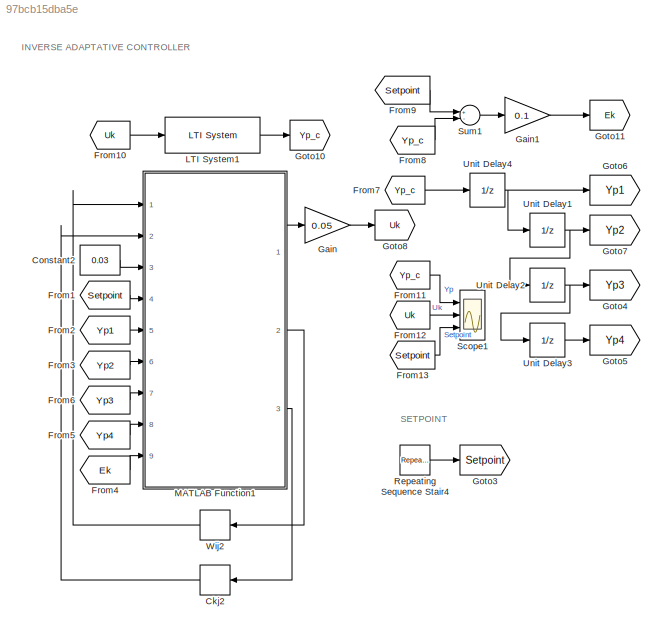
MODEL slx_97bcb15dba5e
KIND model
CONFIG AbsTol = auto
CONFIG EnableMultiTasking = off
CONFIG FixedStep = 0.01
CONFIG MaxStep = auto
CONFIG MinStep = auto
CONFIG RelTol = 1e-3
CONFIG SampleTimeConstraint = Unconstrained
CONFIG Solver = FixedStepAuto
CONFIG SolverName = FixedStepAuto
CONFIG StartTime = 0.0
CONFIG StopTime = 700
BLOCK [Memory] Ckj2
  InitialCondition = C
  NameLocation = top
BLOCK [Constant] Constant2
  Value = 0.03
BLOCK [From] From1
  GotoTag = Setpoint
BLOCK [From] From10
  GotoTag = Uk
BLOCK [From] From11
  GotoTag = Yp_c
BLOCK [From] From12
  GotoTag = Uk
BLOCK [From] From13
  GotoTag = Setpoint
BLOCK [From] From2
  GotoTag = Yp1
BLOCK [From] From3
  GotoTag = Yp2
BLOCK [From] From4
  GotoTag = Ek
BLOCK [From] From5
  GotoTag = Yp4
BLOCK [From] From6
  GotoTag = Yp3
BLOCK [From] From7
  GotoTag = Yp_c
BLOCK [From] From8
  GotoTag = Yp_c
BLOCK [From] From9
  GotoTag = Setpoint
BLOCK [Gain] Gain
  Gain = 0.05
BLOCK [Gain] Gain1
  Gain = 0.1
BLOCK [Goto] Goto10
  GotoTag = Yp_c
BLOCK [Goto] Goto11
  GotoTag = Ek
BLOCK [Goto] Goto3
  GotoTag = Setpoint
BLOCK [Goto] Goto4
  GotoTag = Yp3
BLOCK [Goto] Goto5
  GotoTag = Yp4
BLOCK [Goto] Goto6
  GotoTag = Yp1
BLOCK [Goto] Goto7
  GotoTag = Yp2
BLOCK [Goto] Goto8
  GotoTag = Uk
BLOCK [Reference] LTI System1  REF=cstblocks/LTI System
  Ports = [1, 1]
  SourceBlock = cstblocks/LTI System
  SourceProductBaseCode = CT
  SourceType = LTI Block
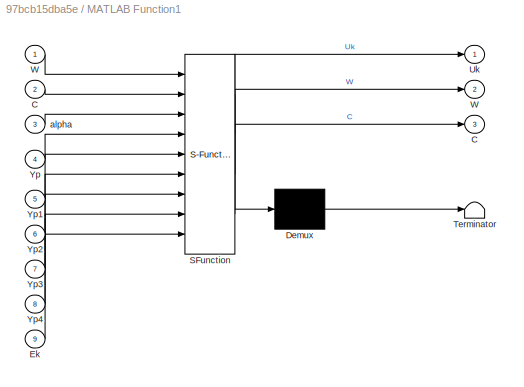
BLOCK [SubSystem] MATLAB Function1
  ErrorFcn = Stateflow.Translate.translate
  PermitHierarchicalResolution = ExplicitOnly
  Ports = [9, 3]
  RequestExecContextInheritance = off
  SFBlockType = MATLAB Function
  TreatAsAtomicUnit = on
BLOCK [Demux] MATLAB Function1/ Demux 
  Outputs = 1
  Ports = [1, 1]
BLOCK [S-Function] MATLAB Function1/ SFunction 
  EnableBusSupport = on
  FunctionName = sf_sfun
  PortCounts = [9 4]
  Ports = [9, 4]
  SFcnIsStateOwnerBlock = off
  SFunctionDeploymentMode = off
  Tag = Stateflow S-Function 1
BLOCK [Terminator] MATLAB Function1/ Terminator 
BLOCK [Outport] MATLAB Function1/C
  Port = 3
BLOCK [Inport] MATLAB Function1/C 
  Port = 2
BLOCK [Inport] MATLAB Function1/Ek
  Port = 9
BLOCK [Outport] MATLAB Function1/Uk
BLOCK [Outport] MATLAB Function1/W
  Port = 2
BLOCK [Inport] MATLAB Function1/W 
BLOCK [Inport] MATLAB Function1/Yp
  Port = 4
BLOCK [Inport] MATLAB Function1/Yp1
  Port = 5
BLOCK [Inport] MATLAB Function1/Yp2
  Port = 6
BLOCK [Inport] MATLAB Function1/Yp3
  Port = 7
BLOCK [Inport] MATLAB Function1/Yp4
  Port = 8
BLOCK [Inport] MATLAB Function1/alpha
  Port = 3
BLOCK [Reference] Repeating Sequence Stair4  REF=simulink/Sources/Repeating
Sequence
Stair
  Ports = [0, 1]
  SourceBlock = simulink/Sources/Repeating\nSequence\nStair
  SourceProductBaseCode = SL
  SourceType = Repeating Sequence Stair
BLOCK [Scope] Scope1
  Floating = off
  NumInputPorts = 3
  Ports = [3]
  ScopeSpecificationString = Simulink.scopes.TimeScopeBlockCfg('CurrentConfiguration', extmgr.ConfigurationSet(extmgr.Configuration('Core','General UI',true,'FigureColor',[1 1 1]),extmgr.Configuration('Core','Source UI',true),extmgr.Configuration('Sources','WiredSimulink',true,'DataLoggingVariableName','ScopeData1'),extmgr.Configuration('Visuals','Time Domain',true,'SerializedDisplays',{struct('MinYLimReal','-0.06404','MaxYLi...<+1848ch>
BLOCK [Sum] Sum1
  Inputs = +-
  Ports = [2, 1]
BLOCK [UnitDelay] Unit Delay1
  HasFrameUpgradeWarning = on
  SampleTime = -1
BLOCK [UnitDelay] Unit Delay2
  HasFrameUpgradeWarning = on
  SampleTime = -1
BLOCK [UnitDelay] Unit Delay3
  HasFrameUpgradeWarning = on
  SampleTime = -1
BLOCK [UnitDelay] Unit Delay4
  HasFrameUpgradeWarning = on
  SampleTime = -1
BLOCK [Memory] Wij2
  InitialCondition = W
  NameLocation = top
ANNOTATION (root): INVERSE ADAPTATIVE CONTROLLER
ANNOTATION (root): SETPOINT
LINE Ckj2:1 -> MATLAB Function1:2
LINE Constant2:1 -> MATLAB Function1:3
LINE From10:1 -> LTI System1:1
LINE From11:1 -> Scope1:1
LINE From12:1 -> Scope1:2
LINE From13:1 -> Scope1:3
LINE From1:1 -> MATLAB Function1:4
LINE From2:1 -> MATLAB Function1:5
LINE From3:1 -> MATLAB Function1:6
LINE From4:1 -> MATLAB Function1:9
LINE From5:1 -> MATLAB Function1:8
LINE From6:1 -> MATLAB Function1:7
LINE From7:1 -> Unit Delay4:1
LINE From8:1 -> Sum1:2
LINE From9:1 -> Sum1:1
LINE Gain1:1 -> Goto11:1
LINE Gain:1 -> Goto8:1
LINE LTI System1:1 -> Goto10:1
LINE MATLAB Function1:1 -> Gain:1
LINE MATLAB Function1:2 -> Wij2:1
LINE MATLAB Function1:3 -> Ckj2:1
LINE Repeating Sequence Stair4:1 -> Goto3:1
LINE Sum1:1 -> Gain1:1
NET Unit Delay1:1 -> Goto7:1, Unit Delay2:1
NET Unit Delay2:1 -> Goto4:1, Unit Delay3:1
LINE Unit Delay3:1 -> Goto5:1
NET Unit Delay4:1 -> Goto6:1, Unit Delay1:1
LINE Wij2:1 -> MATLAB Function1:1
note: NET lines group one-source signal fan-out (src -> all destinations, sorted); 1:1 wires keep LINE
CHART MATLAB Function1 states=1 transitions=1
  STATE_LABEL 'eML_blk_kernel()'
  STATE_LABEL "SCRIPT:\nfunction [Uk, W, C] = fcn(W, C, alpha, Yp, Yp1, Yp2, Yp3, Yp4, Ek)\n    % Define input vector\n    X = [Yp Yp1 Yp2 Yp3 Yp4];\n    \n    % Calculate Aj in the hidden layer\n    Aj = W*X';\n    \n    % Activation function of the hidden layer\n    H = tanh(Aj);\n    \n    % Calculate Ak in the output layer\n    Ak = C'*H;\n    \n    % Activation function of the output layer\n    Uk = Ak;\n    \n    % Update ...<+115ch>"
CHART  states=0 transitions=0
